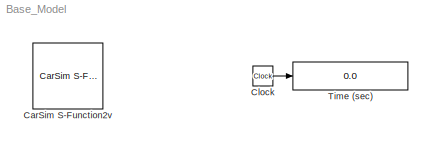
MODEL Base_Model
KIND model
BLOCK [Reference] CarSim S-Function2v  REF=Solver_SF/CarSim S-Function2v
  AttributesFormatString = Vehicle Code: %<VehicleCode>
  Ports = []
  Priority = 1
  SID = 45
  SIMFILE = simfile.sim
  SourceBlock = Solver_SF/CarSim S-Function2v
  SourceType = Vehicle math model library
  VehicleCode = i_i
BLOCK [Clock] Clock
  SID = 20
BLOCK [Display] Time (sec)
  Decimation = 100
  Format = bank
  Ports = [1]
  SID = 40
LINE Clock:1 -> Time (sec):1
